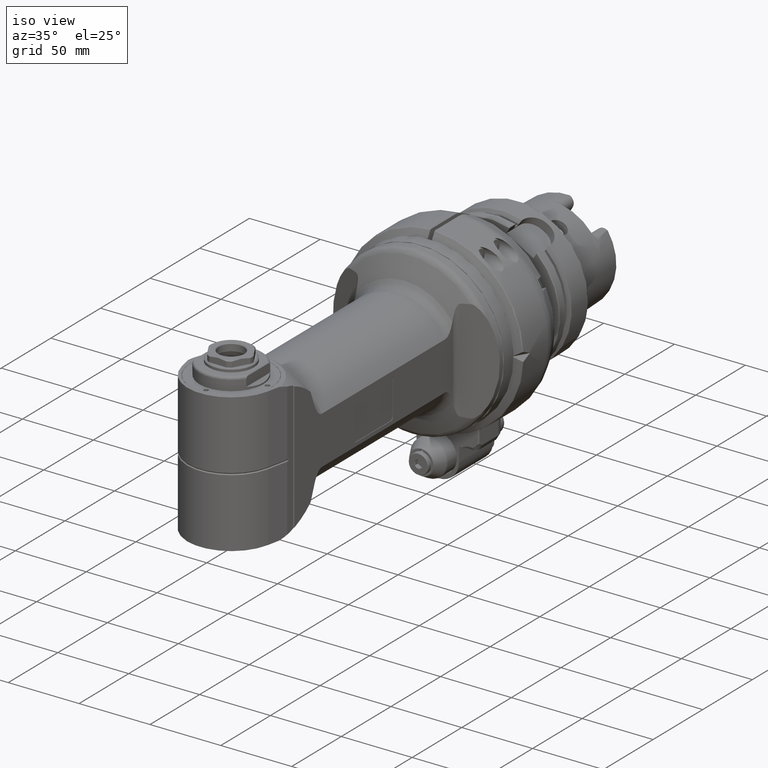
[diagram: clean part render]
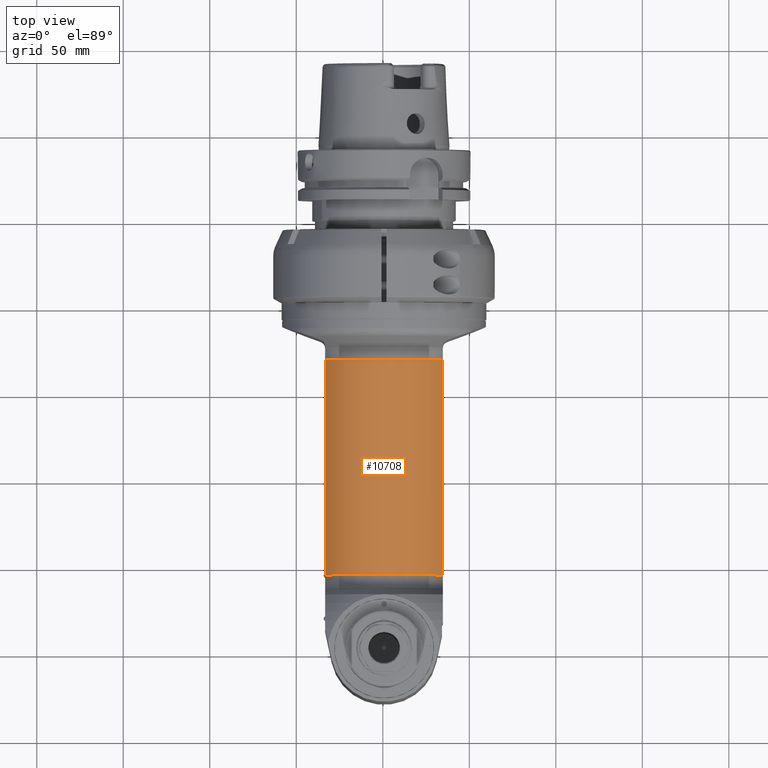
[diagram: tour spotlight — one face highlighted and labeled with its STEP entity id]
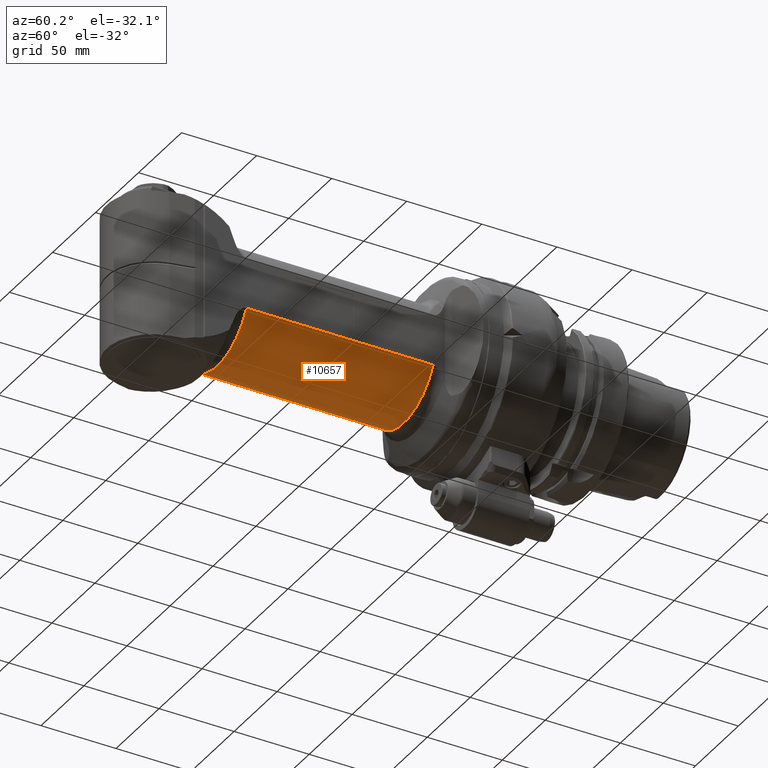
[diagram: tour spotlight — one face highlighted and labeled with its STEP entity id]
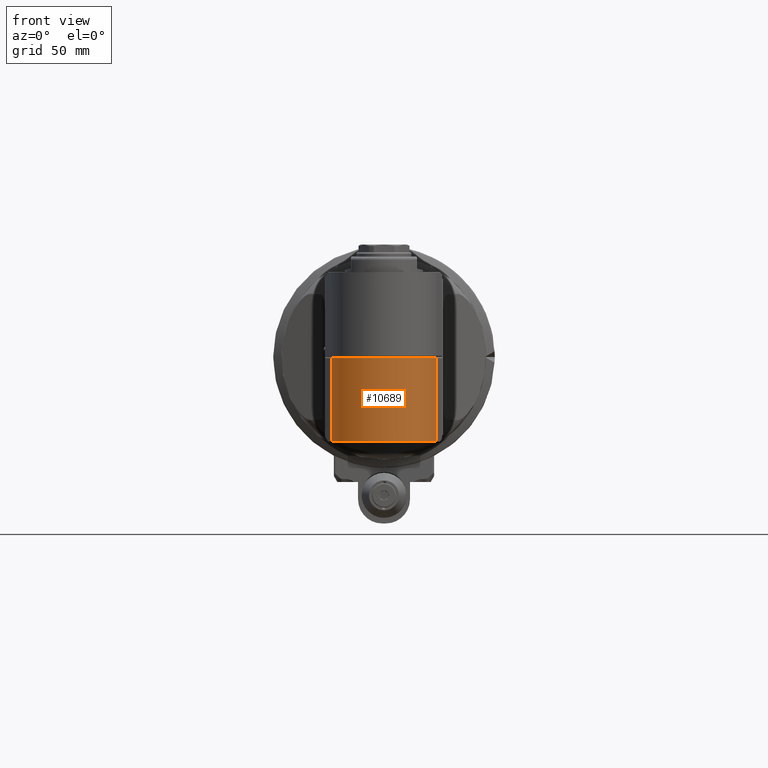
[diagram: tour spotlight — one face highlighted and labeled with its STEP entity id]
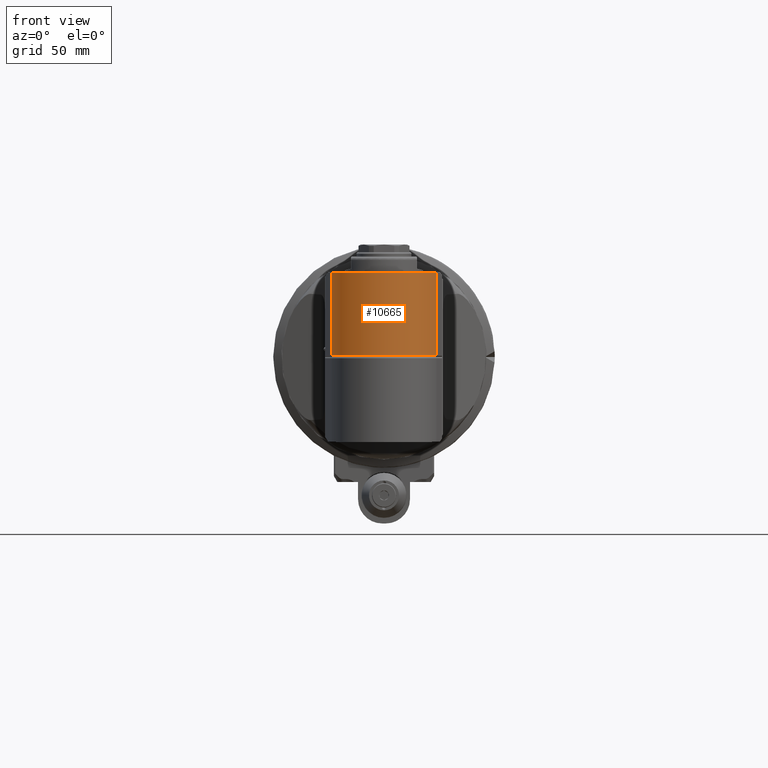
[diagram: tour spotlight — one face highlighted and labeled with its STEP entity id]
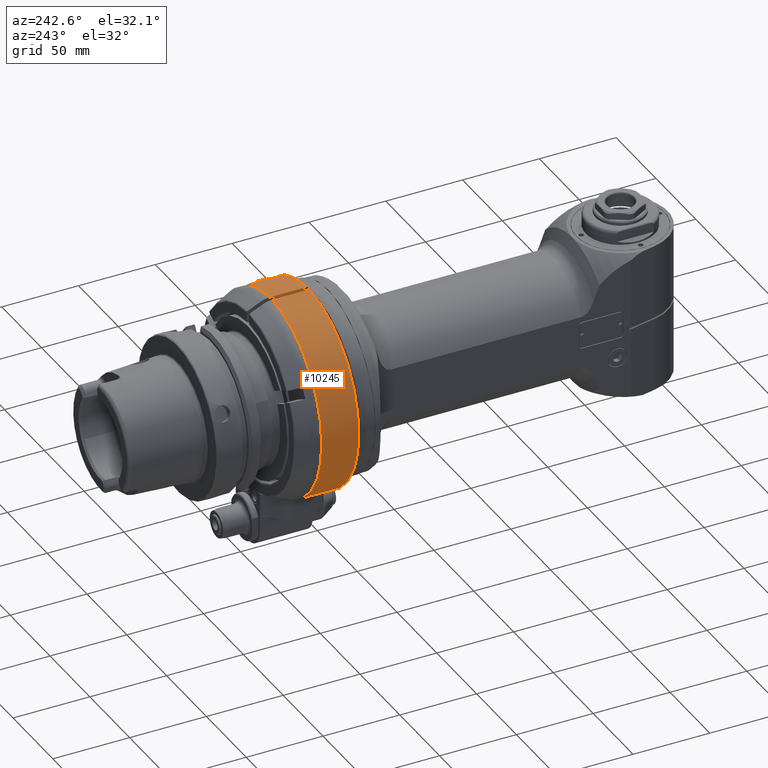
[diagram: tour spotlight — one face highlighted and labeled with its STEP entity id]
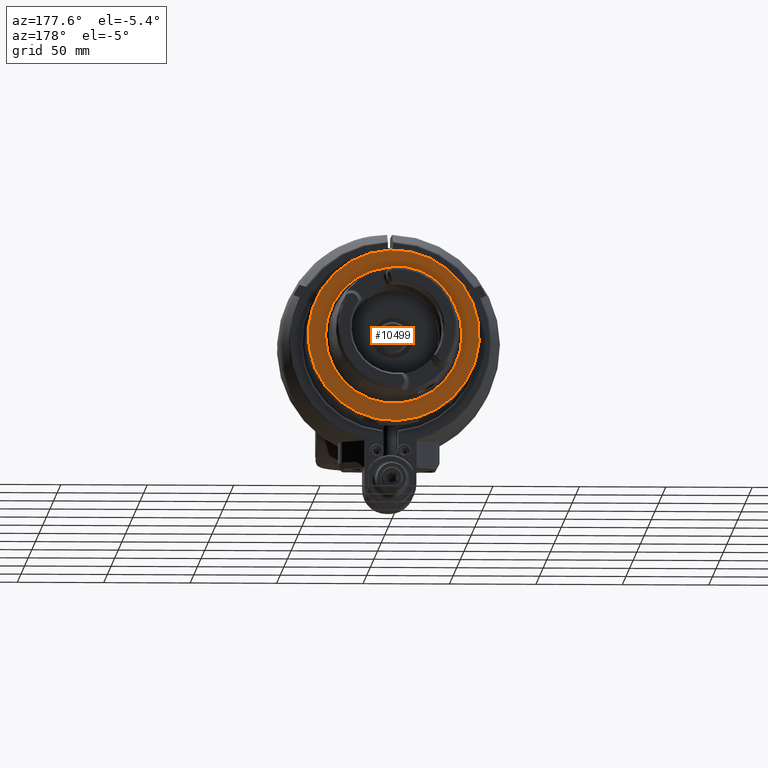
[diagram: tour spotlight — one face highlighted and labeled with its STEP entity id]
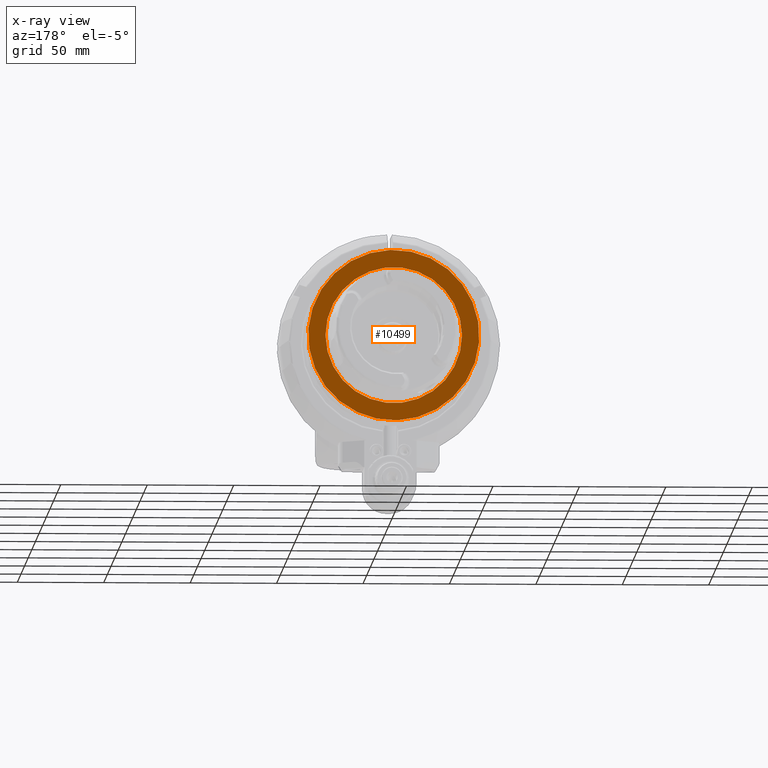
[diagram: x-ray of the same camera — body ghosted, this tour face saturated]
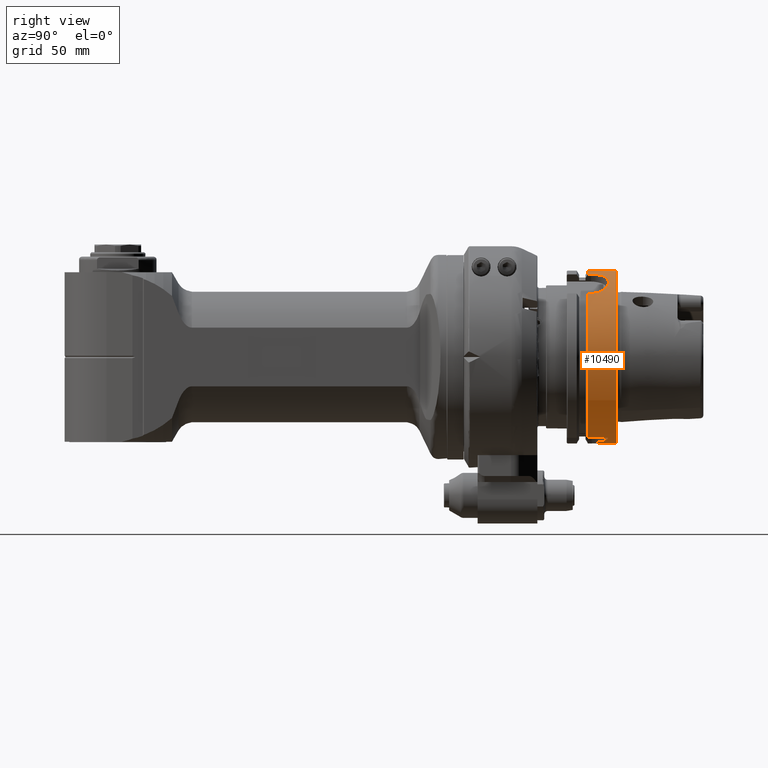
[diagram: tour spotlight — one face highlighted and labeled with its STEP entity id]
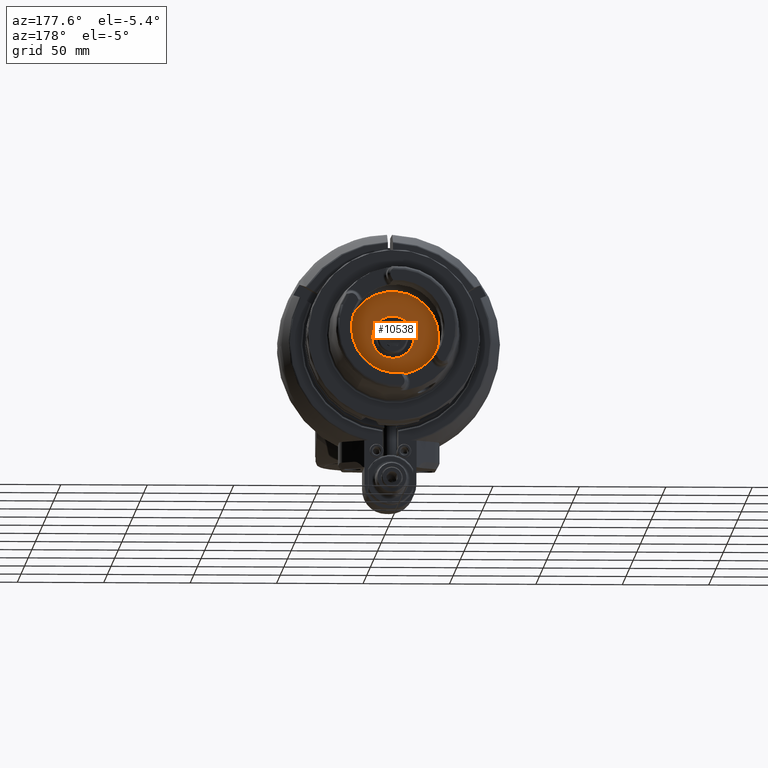
[diagram: tour spotlight — one face highlighted and labeled with its STEP entity id]
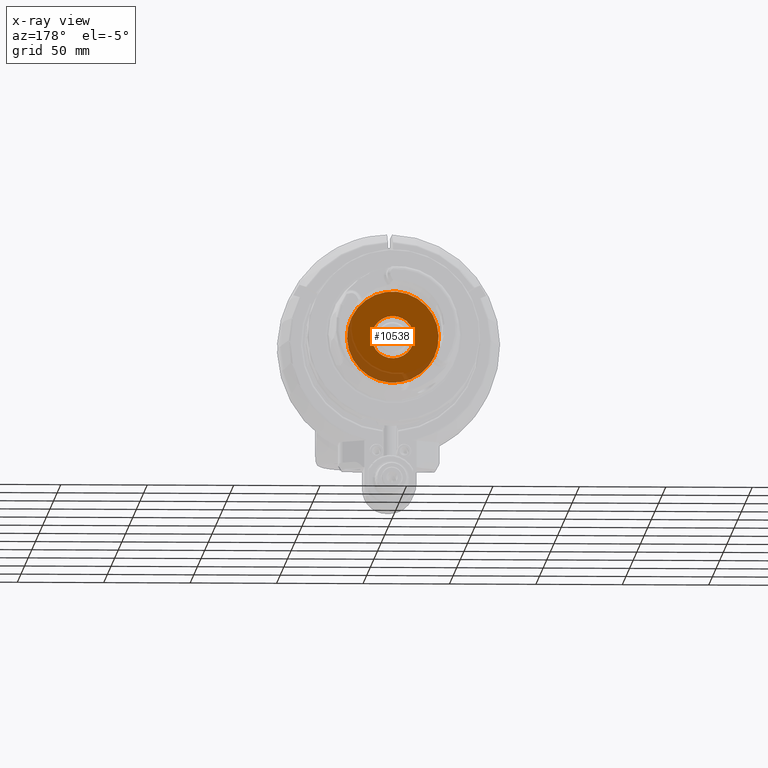
[diagram: x-ray of the same camera — body ghosted, this tour face saturated]
A machine part: a face-by-face anatomy tour. The part has 637 B-rep faces; the first image is the clean iso view, then the 8 largest visible faces are spotlighted one at a time (largest first), each with its STEP entity span.

Face 1 — top view, entity #10708. In plain terms, the highlighted cylindrical surface (partial cylindrical patch) has radius 38 mm, axis along (0, -1, 0).
Definition (entity closure, byte-faithful):
#497=CYLINDRICAL_SURFACE('',#11810,38.);
#1097=CIRCLE('',#11809,38.);
#1098=CIRCLE('',#11811,38.);
#1722=FACE_OUTER_BOUND('',#2412,.T.);
#2412=EDGE_LOOP('',(#9257,#9258,#9259,#9260));
#3283=LINE('',#32753,#3950);
#3287=LINE('',#32879,#3954);
#3950=VECTOR('',#14187,124.2601241953);
#3954=VECTOR('',#14199,124.2601241952);
#4853=VERTEX_POINT('',#32735);
#4854=VERTEX_POINT('',#32752);
#4878=VERTEX_POINT('',#32863);
#4879=VERTEX_POINT('',#32878);
#6277=EDGE_CURVE('',#4854,#4853,#3283,.T.);
#6303=EDGE_CURVE('',#4879,#4878,#3287,.T.);
#6439=EDGE_CURVE('',#4854,#4878,#1097,.T.);
#6440=EDGE_CURVE('',#4879,#4853,#1098,.T.);
#9257=ORIENTED_EDGE('',*,*,#6303,.T.);
#9258=ORIENTED_EDGE('',*,*,#6439,.F.);
#9259=ORIENTED_EDGE('',*,*,#6277,.T.);
#9260=ORIENTED_EDGE('',*,*,#6440,.F.);
#10708=ADVANCED_FACE('',(#1722),#497,.T.);
#11809=AXIS2_PLACEMENT_3D('',#33346,#14426,#14427);
#11810=AXIS2_PLACEMENT_3D('',#33347,#14428,#14429);
#11811=AXIS2_PLACEMENT_3D('',#33348,#14430,#14431);
#14187=DIRECTION('',(-1.,1.184808528101E-13,5.906888076875E-14));
#14199=DIRECTION('',(1.,0.,0.));
#14426=DIRECTION('center_axis',(1.,0.,0.));
#14427=DIRECTION('ref_axis',(0.,-0.44659375653888,0.894736842105259));
#14428=DIRECTION('center_axis',(1.,0.,0.));
#14429=DIRECTION('ref_axis',(0.,-1.,0.));
#14430=DIRECTION('center_axis',(-1.,0.,0.));
#14431=DIRECTION('ref_axis',(0.,-1.,0.));
#32735=CARTESIAN_POINT('',(110.9521198437,-16.97056274848,34.));
#32752=CARTESIAN_POINT('',(235.2122440389,-16.97056274848,34.));
#32753=CARTESIAN_POINT('',(235.2122440389,-16.97056274848,34.));
#32863=CARTESIAN_POINT('',(235.2122440389,-16.97056274848,-34.));
#32878=CARTESIAN_POINT('',(110.9521198437,-16.97056274848,-34.));
#32879=CARTESIAN_POINT('',(110.9521198437,-16.97056274848,-34.));
#33346=CARTESIAN_POINT('Origin',(235.2122440389,0.,0.));
#33347=CARTESIAN_POINT('Origin',(218.1559899284,0.,0.));
#33348=CARTESIAN_POINT('Origin',(110.9521198437,0.,0.));

Face 2 — auxiliary view, entity #10657. In plain terms, the highlighted cylindrical surface (partial cylindrical patch) has radius 38 mm, axis along (-0, 1, -0).
Definition (entity closure, byte-faithful):
#491=CYLINDRICAL_SURFACE('',#11709,38.);
#1052=CIRCLE('',#11710,38.);
#1053=CIRCLE('',#11711,38.);
#1671=FACE_OUTER_BOUND('',#2357,.T.);
#2357=EDGE_LOOP('',(#8977,#8978,#8979,#8980));
#3281=LINE('',#32707,#3948);
#3285=LINE('',#32828,#3952);
#3948=VECTOR('',#14185,124.2601241952);
#3952=VECTOR('',#14191,124.2601241953);
#4847=VERTEX_POINT('',#32705);
#4848=VERTEX_POINT('',#32706);
#4867=VERTEX_POINT('',#32826);
#4868=VERTEX_POINT('',#32827);
#6271=EDGE_CURVE('',#4847,#4848,#3281,.T.);
#6291=EDGE_CURVE('',#4867,#4868,#3285,.T.);
#6292=EDGE_CURVE('',#4847,#4868,#1052,.T.);
#6293=EDGE_CURVE('',#4867,#4848,#1053,.T.);
#8977=ORIENTED_EDGE('',*,*,#6291,.T.);
#8978=ORIENTED_EDGE('',*,*,#6292,.F.);
#8979=ORIENTED_EDGE('',*,*,#6271,.T.);
#8980=ORIENTED_EDGE('',*,*,#6293,.F.);
#10657=ADVANCED_FACE('',(#1671),#491,.T.);
#11709=AXIS2_PLACEMENT_3D('',#32825,#14189,#14190);
#11710=AXIS2_PLACEMENT_3D('',#32829,#14192,#14193);
#11711=AXIS2_PLACEMENT_3D('',#32830,#14194,#14195);
#14185=DIRECTION('',(1.,0.,0.));
#14189=DIRECTION('center_axis',(-1.,0.,0.));
#14190=DIRECTION('ref_axis',(0.,1.,0.));
#14191=DIRECTION('',(-1.,-1.188525350221E-13,-5.93547901626E-14));
#14192=DIRECTION('center_axis',(-1.,0.,0.));
#14193=DIRECTION('ref_axis',(0.,1.,0.));
#14194=DIRECTION('center_axis',(1.,0.,0.));
#14195=DIRECTION('ref_axis',(0.,1.,0.));
#32705=CARTESIAN_POINT('',(110.9521198437,16.97056274848,34.));
#32706=CARTESIAN_POINT('',(235.2122440389,16.97056274848,34.));
#32707=CARTESIAN_POINT('',(110.9521198437,16.97056274848,34.));
#32825=CARTESIAN_POINT('Origin',(102.088375936,0.,0.));
#32826=CARTESIAN_POINT('',(235.2122440389,16.97056274848,-34.));
#32827=CARTESIAN_POINT('',(110.9521198437,16.97056274848,-34.));
#32828=CARTESIAN_POINT('',(235.2122440389,16.97056274848,-34.));
#32829=CARTESIAN_POINT('Origin',(110.9521198437,0.,0.));
#32830=CARTESIAN_POINT('Origin',(235.2122440389,0.,0.));

Face 3 — front view, entity #10689. In plain terms, the highlighted cylindrical surface (partial cylindrical patch) has radius 31 mm, axis along (-0, -0, -1).
Definition (entity closure, byte-faithful):
#495=CYLINDRICAL_SURFACE('',#11774,31.);
#1075=CIRCLE('',#11759,31.);
#1078=CIRCLE('',#11766,31.);
#1703=FACE_OUTER_BOUND('',#2393,.T.);
#2393=EDGE_LOOP('',(#9182,#9183,#9184,#9185));
#3311=LINE('',#33229,#3978);
#3313=LINE('',#33287,#3980);
#3978=VECTOR('',#14313,48.33431457505);
#3980=VECTOR('',#14323,48.33431457505);
#4946=VERTEX_POINT('',#33225);
#4947=VERTEX_POINT('',#33227);
#4948=VERTEX_POINT('',#33231);
#4961=VERTEX_POINT('',#33286);
#6394=EDGE_CURVE('',#4946,#4947,#3311,.T.);
#6405=EDGE_CURVE('',#4946,#4948,#1075,.T.);
#6410=EDGE_CURVE('',#4961,#4948,#3313,.T.);
#6415=EDGE_CURVE('',#4961,#4947,#1078,.T.);
#9182=ORIENTED_EDGE('',*,*,#6415,.F.);
#9183=ORIENTED_EDGE('',*,*,#6410,.T.);
#9184=ORIENTED_EDGE('',*,*,#6405,.F.);
#9185=ORIENTED_EDGE('',*,*,#6394,.T.);
#10689=ADVANCED_FACE('',(#1703),#495,.T.);
#11759=AXIS2_PLACEMENT_3D('',#33269,#14317,#14318);
#11766=AXIS2_PLACEMENT_3D('',#33296,#14335,#14336);
#11774=AXIS2_PLACEMENT_3D('',#33309,#14355,#14356);
#14313=DIRECTION('',(1.411256231369E-13,-1.,-3.895655222007E-14));
#14317=DIRECTION('center_axis',(0.,1.,0.));
#14318=DIRECTION('ref_axis',(0.207911690817089,0.,0.978147600733948));
#14323=DIRECTION('',(-1.387735294179E-13,1.,-3.807451707547E-14));
#14335=DIRECTION('center_axis',(0.,-1.,0.));
#14336=DIRECTION('ref_axis',(0.207911690817799,0.,-0.978147600733797));
#14355=DIRECTION('center_axis',(0.,1.,0.));
#14356=DIRECTION('ref_axis',(1.,0.,0.));
#33225=CARTESIAN_POINT('',(284.5083594153,49.,30.32257562275));
#33227=CARTESIAN_POINT('',(284.5083594154,0.6656854249496,30.32257562275));
#33229=CARTESIAN_POINT('',(284.5083594153,49.,30.32257562275));
#33231=CARTESIAN_POINT('',(284.5083594153,49.,-30.32257562275));
#33269=CARTESIAN_POINT('Origin',(278.063097,49.,0.));
#33286=CARTESIAN_POINT('',(284.5083594154,0.6656854249495,-30.32257562275));
#33287=CARTESIAN_POINT('',(284.5083594154,0.6656854249495,-30.32257562275));
#33296=CARTESIAN_POINT('Origin',(278.063097,0.6656854249493,0.));
#33309=CARTESIAN_POINT('Origin',(278.063097,49.,0.));

Face 4 — front view, entity #10665. In plain terms, the highlighted cylindrical surface (partial cylindrical patch) has radius 31 mm, axis along (-0, -0, -1).
Definition (entity closure, byte-faithful):
#493=CYLINDRICAL_SURFACE('',#11730,31.);
#1063=CIRCLE('',#11728,31.);
#1065=CIRCLE('',#11731,31.);
#1679=FACE_OUTER_BOUND('',#2368,.T.);
#2368=EDGE_LOOP('',(#9055,#9056,#9057,#9058));
#3300=LINE('',#33047,#3967);
#3302=LINE('',#33105,#3969);
#3967=VECTOR('',#14240,48.33431457505);
#3969=VECTOR('',#14252,48.33431457505);
#4907=VERTEX_POINT('',#33031);
#4909=VERTEX_POINT('',#33036);
#4911=VERTEX_POINT('',#33049);
#4925=VERTEX_POINT('',#33103);
#6341=EDGE_CURVE('',#4909,#4907,#3300,.T.);
#6342=EDGE_CURVE('',#4909,#4911,#1063,.T.);
#6357=EDGE_CURVE('',#4925,#4907,#1065,.T.);
#6358=EDGE_CURVE('',#4925,#4911,#3302,.T.);
#9055=ORIENTED_EDGE('',*,*,#6341,.T.);
#9056=ORIENTED_EDGE('',*,*,#6357,.F.);
#9057=ORIENTED_EDGE('',*,*,#6358,.T.);
#9058=ORIENTED_EDGE('',*,*,#6342,.F.);
#10665=ADVANCED_FACE('',(#1679),#493,.T.);
#11728=AXIS2_PLACEMENT_3D('',#33050,#14243,#14244);
#11730=AXIS2_PLACEMENT_3D('',#33102,#14248,#14249);
#11731=AXIS2_PLACEMENT_3D('',#33104,#14250,#14251);
#14240=DIRECTION('',(1.352453888395E-13,1.,3.770700243188E-14));
#14243=DIRECTION('center_axis',(0.,-1.,0.));
#14244=DIRECTION('ref_axis',(0.207911690817109,0.,-0.978147600733944));
#14248=DIRECTION('center_axis',(0.,1.,0.));
#14249=DIRECTION('ref_axis',(1.,0.,0.));
#14250=DIRECTION('center_axis',(0.,1.,0.));
#14251=DIRECTION('ref_axis',(1.,0.,0.));
#14252=DIRECTION('',(-1.458298105748E-13,-1.,4.042661079441E-14));
#33031=CARTESIAN_POINT('',(284.5083594154,-0.6656854249492,-30.32257562275));
#33036=CARTESIAN_POINT('',(284.5083594153,-49.,-30.32257562275));
#33047=CARTESIAN_POINT('',(284.5083594153,-49.,-30.32257562275));
#33049=CARTESIAN_POINT('',(284.5083594153,-49.,30.32257562275));
#33050=CARTESIAN_POINT('Origin',(278.063097,-49.,0.));
#33102=CARTESIAN_POINT('Origin',(278.063097,49.,0.));
#33103=CARTESIAN_POINT('',(284.5083594154,-0.6656854249494,30.32257562275));
#33104=CARTESIAN_POINT('Origin',(278.063097,-0.6656854249492,0.));
#33105=CARTESIAN_POINT('',(284.5083594154,-0.6656854249494,30.32257562275));

Face 5 — auxiliary view, entity #10245. In plain terms, the highlighted cylindrical surface (partial cylindrical patch) has radius 64 mm, axis along (0, -1, 0).
Definition (entity closure, byte-faithful):
#194=ELLIPSE('',#10947,181.019335983739,64.);
#195=ELLIPSE('',#10948,181.019335983739,64.);
#211=B_SPLINE_CURVE_WITH_KNOTS('',3,(#15277,#15278,#15279,#15280,#15281,
#15282,#15283,#15284,#15285,#15286,#15287,#15288,#15289,#15290,#15291,#15292,
#15293,#15294,#15295,#15296,#15297,#15298,#15299,#15300,#15301,#15302,#15303,
#15304,#15305,#15306,#15307),.UNSPECIFIED.,.F.,.F.,(4,2,2,2,2,2,2,2,2,3,
2,2,2,2,4),(2.33576591656641,2.53697025208635,2.73817458760629,3.07997710502095,
3.42177962243561,3.82914079742247,4.23650197240934,4.45401690277108,4.56277436795195,
4.67153183313282,4.78028929831369,4.88904676349456,5.1065616938563,5.51392286884317,
5.92128404383004),.UNSPECIFIED.);
#212=B_SPLINE_CURVE_WITH_KNOTS('',3,(#15308,#15309,#15310,#15311,#15312,
#15313,#15314,#15315,#15316,#15317),.UNSPECIFIED.,.F.,.F.,(4,2,2,2,4),(1.24975221070201,
1.59155472811516,1.9333572455283,2.13456158104736,2.33576591656641),
 .UNSPECIFIED.);
#213=B_SPLINE_CURVE_WITH_KNOTS('',3,(#15345,#15346,#15347,#15348,#15349,
#15350),.UNSPECIFIED.,.F.,.F.,(4,2,4),(-0.273385795737172,-0.201204335519941,
0.),.UNSPECIFIED.);
#214=B_SPLINE_CURVE_WITH_KNOTS('',3,(#15351,#15352,#15353,#15354,#15355,
#15356,#15357,#15358,#15359,#15360,#15361,#15362,#15363,#15364,#15365,#15366,
#15367,#15368,#15369,#15370,#15371,#15372,#15373,#15374,#15375,#15376),
 .UNSPECIFIED.,.F.,.F.,(4,2,2,2,2,2,2,2,2,2,2,2,4),(0.,0.201204335519941,
0.402408671039883,0.74421118845454,1.0860137058692,1.49337488085606,1.90073605584293,
2.11825098620467,2.22700845138554,2.33576591656641,2.44452338174728,2.55328084692815,
2.64273772667916),.UNSPECIFIED.);
#392=CYLINDRICAL_SURFACE('',#10944,64.);
#602=FACE_BOUND('',#1899,.T.);
#699=CIRCLE('',#10945,64.);
#700=CIRCLE('',#10946,64.);
#701=CIRCLE('',#10949,64.);
#702=CIRCLE('',#10950,64.);
#703=CIRCLE('',#10951,64.);
#704=CIRCLE('',#10952,64.);
#1259=FACE_OUTER_BOUND('',#1898,.T.);
#1898=EDGE_LOOP('',(#6805,#6806,#6807,#6808,#6809,#6810,#6811,#6812,#6813,
#6814,#6815,#6816,#6817,#6818));
#1899=EDGE_LOOP('',(#6819,#6820));
#2806=LINE('',#15323,#3473);
#2807=LINE('',#15333,#3474);
#2808=LINE('',#15337,#3475);
#2809=LINE('',#15341,#3476);
#3473=VECTOR('',#12184,24.13740257269);
#3474=VECTOR('',#12193,24.13740277612);
#3475=VECTOR('',#12196,19.6014866602);
#3476=VECTOR('',#12199,19.6014866602);
#4142=VERTEX_POINT('',#15274);
#4143=VERTEX_POINT('',#15276);
#4144=VERTEX_POINT('',#15319);
#4145=VERTEX_POINT('',#15320);
#4146=VERTEX_POINT('',#15322);
#4147=VERTEX_POINT('',#15324);
#4148=VERTEX_POINT('',#15326);
#4149=VERTEX_POINT('',#15328);
#4150=VERTEX_POINT('',#15330);
#4151=VERTEX_POINT('',#15332);
#4152=VERTEX_POINT('',#15334);
#4153=VERTEX_POINT('',#15336);
#4154=VERTEX_POINT('',#15338);
#4155=VERTEX_POINT('',#15340);
#4156=VERTEX_POINT('',#15342);
#4157=VERTEX_POINT('',#15344);
#5198=EDGE_CURVE('',#4143,#4142,#211,.T.);
#5199=EDGE_CURVE('',#4142,#4143,#212,.T.);
#5200=EDGE_CURVE('',#4144,#4145,#699,.T.);
#5201=EDGE_CURVE('',#4144,#4146,#2806,.T.);
#5202=EDGE_CURVE('',#4147,#4146,#700,.T.);
#5203=EDGE_CURVE('',#4148,#4147,#194,.T.);
#5204=EDGE_CURVE('',#4149,#4148,#195,.T.);
#5205=EDGE_CURVE('',#4150,#4149,#701,.T.);
#5206=EDGE_CURVE('',#4150,#4151,#2807,.T.);
#5207=EDGE_CURVE('',#4152,#4151,#702,.T.);
#5208=EDGE_CURVE('',#4152,#4153,#2808,.T.);
#5209=EDGE_CURVE('',#4154,#4153,#703,.T.);
#5210=EDGE_CURVE('',#4154,#4155,#2809,.T.);
#5211=EDGE_CURVE('',#4156,#4155,#704,.T.);
#5212=EDGE_CURVE('',#4156,#4157,#213,.T.);
#5213=EDGE_CURVE('',#4157,#4145,#214,.T.);
#6805=ORIENTED_EDGE('',*,*,#5200,.F.);
#6806=ORIENTED_EDGE('',*,*,#5201,.T.);
#6807=ORIENTED_EDGE('',*,*,#5202,.F.);
#6808=ORIENTED_EDGE('',*,*,#5203,.F.);
#6809=ORIENTED_EDGE('',*,*,#5204,.F.);
#6810=ORIENTED_EDGE('',*,*,#5205,.F.);
#6811=ORIENTED_EDGE('',*,*,#5206,.T.);
#6812=ORIENTED_EDGE('',*,*,#5207,.F.);
#6813=ORIENTED_EDGE('',*,*,#5208,.T.);
#6814=ORIENTED_EDGE('',*,*,#5209,.F.);
#6815=ORIENTED_EDGE('',*,*,#5210,.T.);
#6816=ORIENTED_EDGE('',*,*,#5211,.F.);
#6817=ORIENTED_EDGE('',*,*,#5212,.T.);
#6818=ORIENTED_EDGE('',*,*,#5213,.T.);
#6819=ORIENTED_EDGE('',*,*,#5198,.T.);
#6820=ORIENTED_EDGE('',*,*,#5199,.T.);
#10245=ADVANCED_FACE('',(#1259,#602),#392,.T.);
#10944=AXIS2_PLACEMENT_3D('',#15318,#12180,#12181);
#10945=AXIS2_PLACEMENT_3D('',#15321,#12182,#12183);
#10946=AXIS2_PLACEMENT_3D('',#15325,#12185,#12186);
#10947=AXIS2_PLACEMENT_3D('',#15327,#12187,#12188);
#10948=AXIS2_PLACEMENT_3D('',#15329,#12189,#12190);
#10949=AXIS2_PLACEMENT_3D('',#15331,#12191,#12192);
#10950=AXIS2_PLACEMENT_3D('',#15335,#12194,#12195);
#10951=AXIS2_PLACEMENT_3D('',#15339,#12197,#12198);
#10952=AXIS2_PLACEMENT_3D('',#15343,#12200,#12201);
#12180=DIRECTION('center_axis',(0.,-1.,0.));
#12181=DIRECTION('ref_axis',(1.60450656165627E-11,0.,-1.));
#12182=DIRECTION('center_axis',(0.,1.,0.));
#12183=DIRECTION('ref_axis',(0.0234374975961501,0.,0.999725304124303));
#12184=DIRECTION('',(-1.034538208508E-9,-1.,2.425378056554E-11));
#12185=DIRECTION('center_axis',(0.,-1.,0.));
#12186=DIRECTION('ref_axis',(0.998921689185954,0.,0.0464269197113178));
#12187=DIRECTION('center_axis',(0.612372435695813,-0.353553390593307,-0.707106781186515));
#12188=DIRECTION('ref_axis',(-0.23145502494317,-0.935414346693473,0.267261241912441));
#12189=DIRECTION('center_axis',(0.612372435695813,-0.353553390593307,0.707106781186515));
#12190=DIRECTION('ref_axis',(0.23145502494317,0.935414346693473,0.267261241912441));
#12191=DIRECTION('center_axis',(0.,-1.,0.));
#12192=DIRECTION('ref_axis',(0.,0.,-1.));
#12193=DIRECTION('',(-8.999391902731E-10,1.,-2.10977951291E-11));
#12194=DIRECTION('center_axis',(0.,1.,0.));
#12195=DIRECTION('ref_axis',(-0.462309267047995,0.,-0.88671874999999));
#12196=DIRECTION('',(0.,-1.,0.));
#12197=DIRECTION('center_axis',(0.,1.,0.));
#12198=DIRECTION('ref_axis',(0.,0.,-1.));
#12199=DIRECTION('',(0.,1.,0.));
#12200=DIRECTION('center_axis',(0.,1.,0.));
#12201=DIRECTION('ref_axis',(0.676128638662391,0.,0.73678359372379));
#15274=CARTESIAN_POINT('',(37.30951562026,15.49999961539,52.00000042485));
#15276=CARTESIAN_POINT('',(43.97442393583,9.99999961538,46.50000042486));
#15277=CARTESIAN_POINT('Ctrl Pts',(43.9744239358291,9.99999961538,46.50000042486));
#15278=CARTESIAN_POINT('Ctrl Pts',(43.9744239358291,9.32931849698019,46.50000042486));
#15279=CARTESIAN_POINT('Ctrl Pts',(43.8371576677145,8.63941226663282,46.6307093597918));
#15280=CARTESIAN_POINT('Ctrl Pts',(43.330973996245,7.41453385082752,47.1014453269266));
#15281=CARTESIAN_POINT('Ctrl Pts',(42.9627879316632,6.87837812280302,47.4391753028209));
#15282=CARTESIAN_POINT('Ctrl Pts',(41.9031361817933,5.75485139666226,48.3831077989478));
#15283=CARTESIAN_POINT('Ctrl Pts',(41.0581670328874,5.25331152365568,49.1081702488795));
#15284=CARTESIAN_POINT('Ctrl Pts',(39.2246598953968,4.62499828821081,50.5846965992716));
#15285=CARTESIAN_POINT('Ctrl Pts',(38.235230779103,4.49999961537999,51.3358084268127));
#15286=CARTESIAN_POINT('Ctrl Pts',(36.2062457622713,4.49999961537999,52.7915862645079));
#15287=CARTESIAN_POINT('Ctrl Pts',(34.9821186225339,4.67632414366851,53.6122599705483));
#15288=CARTESIAN_POINT('Ctrl Pts',(32.5657995649948,5.39051204234231,55.1134442052857));
#15289=CARTESIAN_POINT('Ctrl Pts',(31.3720538264285,5.91986354060993,55.7954903504457));
#15290=CARTESIAN_POINT('Ctrl Pts',(29.8072946608512,7.00595527425918,56.6383964479));
#15291=CARTESIAN_POINT('Ctrl Pts',(29.2452605488542,7.48590536429318,56.9292743638302));
#15292=CARTESIAN_POINT('Ctrl Pts',(28.6063863858598,8.33744028863467,57.2514763474828));
#15293=CARTESIAN_POINT('Ctrl Pts',(28.4274607860322,8.64293843668211,57.3402067213012));
#15294=CARTESIAN_POINT('Ctrl Pts',(28.1755551468921,9.29298454853775,57.4644037607939));
#15295=CARTESIAN_POINT('Ctrl Pts',(28.1024901234944,9.63747473144376,57.50000042486));
#15296=CARTESIAN_POINT('Ctrl Pts',(28.1024901234944,9.99999961538,57.50000042486));
#15297=CARTESIAN_POINT('Ctrl Pts',(28.1024901234944,10.3625244993162,57.50000042486));
#15298=CARTESIAN_POINT('Ctrl Pts',(28.1755551468921,10.7070146822222,57.4644037607939));
#15299=CARTESIAN_POINT('Ctrl Pts',(28.4274607860322,11.3570607940779,57.3402067213012));
#15300=CARTESIAN_POINT('Ctrl Pts',(28.6063863858598,11.6625589421253,57.2514763474828));
#15301=CARTESIAN_POINT('Ctrl Pts',(29.2452605488542,12.5140938664668,56.9292743638302));
#15302=CARTESIAN_POINT('Ctrl Pts',(29.8072946608512,12.9940439565008,56.6383964479));
#15303=CARTESIAN_POINT('Ctrl Pts',(31.3720538264285,14.0801356901501,55.7954903504457));
#15304=CARTESIAN_POINT('Ctrl Pts',(32.5657995649948,14.6094871884177,55.1134442052857));
#15305=CARTESIAN_POINT('Ctrl Pts',(34.9821186225339,15.3236750870915,53.6122599705483));
#15306=CARTESIAN_POINT('Ctrl Pts',(36.2062457622713,15.49999961538,52.7915862645079));
#15307=CARTESIAN_POINT('Ctrl Pts',(37.3095156202082,15.49999961538,52.00000042486));
#15308=CARTESIAN_POINT('Ctrl Pts',(37.3095156202082,15.49999961538,52.00000042486));
#15309=CARTESIAN_POINT('Ctrl Pts',(38.2352307791025,15.4999996153766,51.335808426812));
#15310=CARTESIAN_POINT('Ctrl Pts',(39.2246598953968,15.3750009425492,50.5846965992716));
#15311=CARTESIAN_POINT('Ctrl Pts',(41.0581670328874,14.7466877071043,49.1081702488795));
#15312=CARTESIAN_POINT('Ctrl Pts',(41.9031361817933,14.2451478340977,48.3831077989478));
#15313=CARTESIAN_POINT('Ctrl Pts',(42.9627879316632,13.121621107957,47.4391753028209));
#15314=CARTESIAN_POINT('Ctrl Pts',(43.330973996245,12.5854653799325,47.1014453269266));
#15315=CARTESIAN_POINT('Ctrl Pts',(43.8371576677145,11.3605869641272,46.6307093597918));
#15316=CARTESIAN_POINT('Ctrl Pts',(43.9744239358291,10.6706807337798,46.50000042486));
#15317=CARTESIAN_POINT('Ctrl Pts',(43.9744239358291,9.99999961538,46.50000042486));
#15318=CARTESIAN_POINT('Origin',(0.,38.92307669231,0.));
#15319=CARTESIAN_POINT('',(1.49999983907449,27.6014864331705,63.9824194641222));
#15320=CARTESIAN_POINT('',(29.40321820789,27.60148642943,56.84585085139));
#15321=CARTESIAN_POINT('Origin',(0.,27.60148642943,0.));
#15322=CARTESIAN_POINT('',(1.4999998268305,3.46410161514,63.9824194644093));
#15323=CARTESIAN_POINT('',(1.499999831995,27.60149472155,63.98241946429));
#15324=CARTESIAN_POINT('',(63.9309881079,3.46410161514,2.971322861524));
#15325=CARTESIAN_POINT('Origin',(0.,3.46410161514,0.));
#15326=CARTESIAN_POINT('',(64.,9.52627944163,-4.618527782441E-14));
#15327=CARTESIAN_POINT('Origin',(0.,-101.324972242774,0.));
#15328=CARTESIAN_POINT('',(63.9309881079,3.46410161514,-2.971322861525));
#15329=CARTESIAN_POINT('Origin',(0.,-101.324972242768,0.));
#15330=CARTESIAN_POINT('',(-1.49999982761552,3.46410160603627,63.9824194643885));
#15331=CARTESIAN_POINT('Origin',(0.,3.46410161514,0.));
#15332=CARTESIAN_POINT('',(-1.49999983847661,27.6014864334864,63.9824194641339));
#15333=CARTESIAN_POINT('',(-1.499999809077,3.46409264559,63.98241946482));
#15334=CARTESIAN_POINT('',(-29.58779309107,27.60148642943,-56.75));
#15335=CARTESIAN_POINT('Origin',(0.,27.60148642943,0.));
#15336=CARTESIAN_POINT('',(-29.58779309107,7.99999976923,-56.75));
#15337=CARTESIAN_POINT('',(-29.58779309107,27.60148642943,-56.75));
#15338=CARTESIAN_POINT('',(29.58779309107,7.99999976923,-56.75));
#15339=CARTESIAN_POINT('Origin',(0.,7.99999976923,0.));
#15340=CARTESIAN_POINT('',(29.58779309107,27.60148642943,-56.75));
#15341=CARTESIAN_POINT('',(29.58779309107,7.99999976923,-56.75));
#15342=CARTESIAN_POINT('',(43.27223287439,27.60148642943,47.15414999832));
#15343=CARTESIAN_POINT('Origin',(0.,27.60148642943,0.));
#15344=CARTESIAN_POINT('',(43.9744239358291,24.99999961538,46.50000042486));
#15345=CARTESIAN_POINT('Ctrl Pts',(43.2722328743894,27.6014864294267,47.1541499983259));
#15346=CARTESIAN_POINT('Ctrl Pts',(43.3882340278707,27.4031967691484,47.0476985210472));
#15347=CARTESIAN_POINT('Ctrl Pts',(43.4932698845406,27.1927369263059,46.9505149112594));
#15348=CARTESIAN_POINT('Ctrl Pts',(43.8371576677145,26.3605869641272,46.6307093597918));
#15349=CARTESIAN_POINT('Ctrl Pts',(43.9744239358291,25.6706807337798,46.50000042486));
#15350=CARTESIAN_POINT('Ctrl Pts',(43.9744239358291,24.99999961538,46.50000042486));
#15351=CARTESIAN_POINT('Ctrl Pts',(43.9744239358291,24.99999961538,46.50000042486));
#15352=CARTESIAN_POINT('Ctrl Pts',(43.9744239358291,24.3293184969802,46.50000042486));
#15353=CARTESIAN_POINT('Ctrl Pts',(43.8371576677145,23.6394122666328,46.6307093597918));
#15354=CARTESIAN_POINT('Ctrl Pts',(43.330973996245,22.4145338508275,47.1014453269266));
#15355=CARTESIAN_POINT('Ctrl Pts',(42.9627879316632,21.878378122803,47.4391753028209));
#15356=CARTESIAN_POINT('Ctrl Pts',(41.9031361817933,20.7548513966623,48.3831077989478));
#15357=CARTESIAN_POINT('Ctrl Pts',(41.0581670328874,20.2533115236557,49.1081702488795));
#15358=CARTESIAN_POINT('Ctrl Pts',(39.2246598953968,19.6249982882108,50.5846965992716));
#15359=CARTESIAN_POINT('Ctrl Pts',(38.235230779103,19.49999961538,51.3358084268127));
#15360=CARTESIAN_POINT('Ctrl Pts',(36.2062457622713,19.49999961538,52.7915862645079));
#15361=CARTESIAN_POINT('Ctrl Pts',(34.9821186225339,19.6763241436685,53.6122599705483));
#15362=CARTESIAN_POINT('Ctrl Pts',(32.5657995649948,20.3905120423423,55.1134442052857));
#15363=CARTESIAN_POINT('Ctrl Pts',(31.3720538264285,20.9198635406099,55.7954903504457));
#15364=CARTESIAN_POINT('Ctrl Pts',(29.8072946608512,22.0059552742592,56.6383964479));
#15365=CARTESIAN_POINT('Ctrl Pts',(29.2452605488542,22.4859053642932,56.9292743638302));
#15366=CARTESIAN_POINT('Ctrl Pts',(28.6063863858598,23.3374402886347,57.2514763474828));
#15367=CARTESIAN_POINT('Ctrl Pts',(28.4274607860322,23.6429384366821,57.3402067213012));
#15368=CARTESIAN_POINT('Ctrl Pts',(28.1755551468921,24.2929845485378,57.4644037607939));
#15369=CARTESIAN_POINT('Ctrl Pts',(28.1024901234944,24.6374747314438,57.50000042486));
#15370=CARTESIAN_POINT('Ctrl Pts',(28.1024901234944,25.3625244993162,57.50000042486));
#15371=CARTESIAN_POINT('Ctrl Pts',(28.1755551468921,25.7070146822222,57.4644037607939));
#15372=CARTESIAN_POINT('Ctrl Pts',(28.4274607860322,26.3570607940779,57.3402067213012));
#15373=CARTESIAN_POINT('Ctrl Pts',(28.6063863858598,26.6625589421253,57.2514763474828));
#15374=CARTESIAN_POINT('Ctrl Pts',(28.9945100072322,27.1798764949457,57.0557348259874));
#15375=CARTESIAN_POINT('Ctrl Pts',(29.1926854379836,27.3986414906453,56.9547478224287));
#15376=CARTESIAN_POINT('Ctrl Pts',(29.4032182078948,27.6014864294271,56.8458508513939));

Face 6 — auxiliary view, entity #10499. An x-ray twin of the same camera follows (body ghosted, this face saturated) — the face is partly hidden behind the body. In plain terms, the highlighted planar face has unit normal (-0, -1, 0).
Definition (entity closure, byte-faithful):
#636=FACE_BOUND('',#2187,.T.);
#921=CIRCLE('',#11418,49.5);
#922=CIRCLE('',#11420,39.48458996994);
#1513=FACE_OUTER_BOUND('',#2186,.T.);
#2186=EDGE_LOOP('',(#8136));
#2187=EDGE_LOOP('',(#8137));
#4603=VERTEX_POINT('',#31252);
#4604=VERTEX_POINT('',#31256);
#5883=EDGE_CURVE('',#4603,#4603,#921,.T.);
#5884=EDGE_CURVE('',#4604,#4604,#922,.T.);
#8136=ORIENTED_EDGE('',*,*,#5883,.T.);
#8137=ORIENTED_EDGE('',*,*,#5884,.T.);
#10092=PLANE('',#11419);
#10499=ADVANCED_FACE('',(#1513,#636),#10092,.F.);
#11418=AXIS2_PLACEMENT_3D('',#31254,#13449,#13450);
#11419=AXIS2_PLACEMENT_3D('',#31255,#13451,#13452);
#11420=AXIS2_PLACEMENT_3D('',#31257,#13453,#13454);
#13449=DIRECTION('center_axis',(1.54009162449779E-13,1.,-8.87417182908664E-14));
#13450=DIRECTION('ref_axis',(-0.866025403784429,1.77746706242506E-13,0.500000000000017));
#13451=DIRECTION('center_axis',(-1.54009162449779E-13,-1.,8.87417182908664E-14));
#13452=DIRECTION('ref_axis',(0.500000000000017,-1.51998809520375E-16,0.866025403784429));
#13453=DIRECTION('center_axis',(-1.54070515829829E-13,-1.,8.86354511194037E-14));
#13454=DIRECTION('ref_axis',(0.565286898981988,-1.60208928738564E-13,-0.824894370110093));
#31252=CARTESIAN_POINT('',(-24.7499999999918,88.49999976923,-42.8682574873344));
#31254=CARTESIAN_POINT('Origin',(9.02472469598529E-12,88.49999976923,-5.20849656909233E-12));
#31255=CARTESIAN_POINT('Origin',(21.9500000000103,88.4999997692244,38.0185152261322));
#31256=CARTESIAN_POINT('',(-22.3201214216742,88.4999997692289,32.5706159723046));
#31257=CARTESIAN_POINT('Origin',(9.02472469598529E-12,88.49999976923,-5.20849656909233E-12));

Face 7 — right view, entity #10490. In plain terms, the highlighted cylindrical surface (bore or boss wall) has radius 50 mm, axis along (-0, -1, 0).
Definition (entity closure, byte-faithful):
#282=B_SPLINE_CURVE_WITH_KNOTS('',3,(#31046,#31047,#31048,#31049,#31050,
#31051,#31052,#31053,#31054,#31055,#31056,#31057),.UNSPECIFIED.,.F.,.F.,
(4,2,2,2,2,4),(-2.43960407431131E-12,0.372938236851937,0.745876473706314,
0.949211985781746,1.15254749785718,1.4744467776868),.UNSPECIFIED.);
#283=B_SPLINE_CURVE_WITH_KNOTS('',3,(#31063,#31064,#31065,#31066,#31067,
#31068,#31069,#31070,#31071,#31072,#31073,#31074,#31075,#31076,#31077,#31078,
#31079,#31080),.UNSPECIFIED.,.F.,.F.,(4,2,2,2,2,2,2,2,4),(4.04676292476118E-14,
0.377795255890225,0.755590511780409,1.1333645980446,1.51113868430879,1.88891277057297,
2.26668685683716,2.64448211272735,3.02227736861753),.UNSPECIFIED.);
#284=B_SPLINE_CURVE_WITH_KNOTS('',3,(#31088,#31089,#31090,#31091,#31092,
#31093,#31094,#31095,#31096,#31097),.UNSPECIFIED.,.F.,.F.,(4,2,2,2,4),(1.50996806152533,
1.88841920047208,2.26687033941884,2.64473353329375,3.02259672716866),
 .UNSPECIFIED.);
#285=B_SPLINE_CURVE_WITH_KNOTS('',3,(#31101,#31102,#31103,#31104,#31105,
#31106,#31107,#31108,#31109,#31110),.UNSPECIFIED.,.F.,.F.,(4,2,2,2,4),(6.72795152923875E-14,
0.37808380192431,0.756167603848552,1.13439818677692,1.51262876970529),
 .UNSPECIFIED.);
#286=B_SPLINE_CURVE_WITH_KNOTS('',3,(#31120,#31121,#31122,#31123,#31124,
#31125,#31126,#31127,#31128,#31129,#31130,#31131,#31132,#31133,#31134,#31135,
#31136,#31137,#31138,#31139,#31140,#31141,#31142,#31143,#31144,#31145,#31146,
#31147,#31148,#31149,#31150,#31151,#31152,#31153),.UNSPECIFIED.,.T.,.F.,
(4,2,2,2,2,2,2,2,2,2,2,2,2,2,2,2,4),(-3.01565744395019,-2.82717853293504,
-2.63869962191989,-2.45022135244126,-2.26174308296264,-2.07326481348402,
-1.88478654400539,-1.69630763299024,-1.50782872197509,-1.31934981095994,
-1.1308708999448,-0.942392630466171,-0.753914360987547,-0.565436091508923,
-0.376957822030299,-0.188478911015149,0.),.UNSPECIFIED.);
#448=CYLINDRICAL_SURFACE('',#11399,50.);
#635=FACE_BOUND('',#2177,.T.);
#911=CIRCLE('',#11400,50.);
#912=CIRCLE('',#11401,50.);
#913=CIRCLE('',#11402,50.);
#914=CIRCLE('',#11403,50.);
#915=CIRCLE('',#11404,50.);
#916=CIRCLE('',#11405,50.);
#917=CIRCLE('',#11406,50.);
#1504=FACE_OUTER_BOUND('',#2176,.T.);
#2176=EDGE_LOOP('',(#8062,#8063,#8064,#8065,#8066,#8067,#8068,#8069,#8070,
#8071,#8072,#8073,#8074,#8075,#8076,#8077,#8078,#8079,#8080));
#2177=EDGE_LOOP('',(#8081));
#3089=LINE('',#31019,#3756);
#3097=LINE('',#31045,#3764);
#3098=LINE('',#31061,#3765);
#3099=LINE('',#31082,#3766);
#3100=LINE('',#31086,#3767);
#3101=LINE('',#31112,#3768);
#3102=LINE('',#31115,#3769);
#3756=VECTOR('',#13373,2.11549883567801);
#3764=VECTOR('',#13385,11.7523966951103);
#3765=VECTOR('',#13388,1.752404735808);
#3766=VECTOR('',#13389,1.752404735808);
#3767=VECTOR('',#13392,1.752404735808);
#3768=VECTOR('',#13395,1.752404735809);
#3769=VECTOR('',#13398,50.);
#4552=VERTEX_POINT('',#31017);
#4553=VERTEX_POINT('',#31018);
#4561=VERTEX_POINT('',#31041);
#4562=VERTEX_POINT('',#31042);
#4563=VERTEX_POINT('',#31044);
#4564=VERTEX_POINT('',#31058);
#4565=VERTEX_POINT('',#31060);
#4566=VERTEX_POINT('',#31062);
#4567=VERTEX_POINT('',#31081);
#4568=VERTEX_POINT('',#31083);
#4569=VERTEX_POINT('',#31085);
#4570=VERTEX_POINT('',#31087);
#4571=VERTEX_POINT('',#31098);
#4572=VERTEX_POINT('',#31100);
#4573=VERTEX_POINT('',#31111);
#4574=VERTEX_POINT('',#31114);
#4575=VERTEX_POINT('',#31116);
#4576=VERTEX_POINT('',#31119);
#5820=EDGE_CURVE('',#4552,#4553,#3089,.T.);
#5830=EDGE_CURVE('',#4561,#4562,#911,.T.);
#5831=EDGE_CURVE('',#4561,#4563,#3097,.T.);
#5832=EDGE_CURVE('',#4552,#4563,#282,.T.);
#5833=EDGE_CURVE('',#4564,#4553,#912,.T.);
#5834=EDGE_CURVE('',#4564,#4565,#3098,.T.);
#5835=EDGE_CURVE('',#4566,#4565,#283,.T.);
#5836=EDGE_CURVE('',#4566,#4567,#3099,.T.);
#5837=EDGE_CURVE('',#4568,#4567,#913,.T.);
#5838=EDGE_CURVE('',#4568,#4569,#3100,.T.);
#5839=EDGE_CURVE('',#4570,#4569,#284,.T.);
#5840=EDGE_CURVE('',#4570,#4571,#914,.T.);
#5841=EDGE_CURVE('',#4572,#4571,#285,.T.);
#5842=EDGE_CURVE('',#4572,#4573,#3101,.T.);
#5843=EDGE_CURVE('',#4562,#4573,#915,.T.);
#5844=EDGE_CURVE('',#4562,#4574,#3102,.T.);
#5845=EDGE_CURVE('',#4575,#4574,#916,.T.);
#5846=EDGE_CURVE('',#4574,#4575,#917,.T.);
#5847=EDGE_CURVE('',#4576,#4576,#286,.T.);
#8062=ORIENTED_EDGE('',*,*,#5830,.F.);
#8063=ORIENTED_EDGE('',*,*,#5831,.T.);
#8064=ORIENTED_EDGE('',*,*,#5832,.F.);
#8065=ORIENTED_EDGE('',*,*,#5820,.T.);
#8066=ORIENTED_EDGE('',*,*,#5833,.F.);
#8067=ORIENTED_EDGE('',*,*,#5834,.T.);
#8068=ORIENTED_EDGE('',*,*,#5835,.F.);
#8069=ORIENTED_EDGE('',*,*,#5836,.T.);
#8070=ORIENTED_EDGE('',*,*,#5837,.F.);
#8071=ORIENTED_EDGE('',*,*,#5838,.T.);
#8072=ORIENTED_EDGE('',*,*,#5839,.F.);
#8073=ORIENTED_EDGE('',*,*,#5840,.T.);
#8074=ORIENTED_EDGE('',*,*,#5841,.F.);
#8075=ORIENTED_EDGE('',*,*,#5842,.T.);
#8076=ORIENTED_EDGE('',*,*,#5843,.F.);
#8077=ORIENTED_EDGE('',*,*,#5844,.T.);
#8078=ORIENTED_EDGE('',*,*,#5845,.F.);
#8079=ORIENTED_EDGE('',*,*,#5846,.F.);
#8080=ORIENTED_EDGE('',*,*,#5844,.F.);
#8081=ORIENTED_EDGE('',*,*,#5847,.T.);
#10490=ADVANCED_FACE('',(#1504,#635),#448,.T.);
#11399=AXIS2_PLACEMENT_3D('',#31040,#13381,#13382);
#11400=AXIS2_PLACEMENT_3D('',#31043,#13383,#13384);
#11401=AXIS2_PLACEMENT_3D('',#31059,#13386,#13387);
#11402=AXIS2_PLACEMENT_3D('',#31084,#13390,#13391);
#11403=AXIS2_PLACEMENT_3D('',#31099,#13393,#13394);
#11404=AXIS2_PLACEMENT_3D('',#31113,#13396,#13397);
#11405=AXIS2_PLACEMENT_3D('',#31117,#13399,#13400);
#11406=AXIS2_PLACEMENT_3D('',#31118,#13401,#13402);
#13373=DIRECTION('',(1.32932442317644E-6,-0.999999999999094,2.11736615397175E-7));
#13381=DIRECTION('center_axis',(-1.54009162449779E-13,-1.,8.87417182908664E-14));
#13382=DIRECTION('ref_axis',(-0.866025403784429,1.77746706242506E-13,0.500000000000017));
#13383=DIRECTION('center_axis',(-1.54009162449779E-13,-1.,8.87417182908664E-14));
#13384=DIRECTION('ref_axis',(0.357551113299212,-1.37941467656134E-13,-0.933893570691272));
#13385=DIRECTION('',(2.2627919011833E-7,0.999999999999971,8.66332321584738E-8));
#13386=DIRECTION('center_axis',(-1.54009162449779E-13,-1.,8.87417182908664E-14));
#13387=DIRECTION('ref_axis',(-0.316692867799772,-3.5400413438566E-14,-0.948528137423849));
#13388=DIRECTION('',(1.57293927259129E-13,1.,-8.30523387501579E-14));
#13389=DIRECTION('',(-1.59321263528079E-13,-1.,7.95408893283094E-14));
#13390=DIRECTION('center_axis',(-1.54009162449779E-13,-1.,8.87417182908664E-14));
#13391=DIRECTION('ref_axis',(0.297224347097735,3.89560005541403E-14,0.954807670419716));
#13392=DIRECTION('',(1.47157245914328E-13,1.,-1.00609585859487E-13));
#13393=DIRECTION('center_axis',(1.54009162449779E-13,1.,-8.87417182908664E-14));
#13394=DIRECTION('ref_axis',(0.482579481922328,3.40296571813225E-15,0.875852181379699));
#13395=DIRECTION('',(-1.47157245914328E-13,-1.,1.00609585859487E-13));
#13396=DIRECTION('center_axis',(-1.54009162449779E-13,-1.,8.87417182908664E-14));
#13397=DIRECTION('ref_axis',(0.357551113299212,-1.37941467656134E-13,-0.933893570691272));
#13398=DIRECTION('',(1.54009162449779E-13,1.,-8.87417182908664E-14));
#13399=DIRECTION('center_axis',(1.54009162449779E-13,1.,-8.87417182908664E-14));
#13400=DIRECTION('ref_axis',(-0.500000000000017,1.51998809520307E-16,-0.866025403784429));
#13401=DIRECTION('center_axis',(1.54009162449779E-13,1.,-8.87417182908664E-14));
#13402=DIRECTION('ref_axis',(-0.500000000000017,1.51998809520307E-16,-0.866025403784429));
#31017=CARTESIAN_POINT('',(7.86492190383626,73.8631019099872,-49.3775556649684));
#31018=CARTESIAN_POINT('',(7.8649231876275,71.7475977785819,-49.3775555742589));
#31019=CARTESIAN_POINT('',(7.86492190383626,73.8631019099872,-49.3775556649684));
#31040=CARTESIAN_POINT('Origin',(4.9631405051187E-12,62.1276455128,-2.86816853700987E-12));
#31041=CARTESIAN_POINT('',(17.877553993885,71.7475948818525,-46.6946788932686));
#31042=CARTESIAN_POINT('',(43.3012701892279,71.7475950334098,-25.0000000000046));
#31043=CARTESIAN_POINT('Origin',(6.44470087360036E-12,71.747595033419,-3.72185938733755E-12));
#31044=CARTESIAN_POINT('',(17.8775556649691,83.4999997692203,-46.6946785345705));
#31045=CARTESIAN_POINT('',(17.8775530056416,71.7476030741093,-46.6946795527167));
#31046=CARTESIAN_POINT('Ctrl Pts',(7.86492190383628,73.8631019100116,-49.3775556649684));
#31047=CARTESIAN_POINT('Ctrl Pts',(7.86492190383261,75.1062293661908,-49.3775556649691));
#31048=CARTESIAN_POINT('Ctrl Pts',(8.17841945542063,76.403229625249,-49.3302896850085));
#31049=CARTESIAN_POINT('Ctrl Pts',(9.36642835701544,78.7213411566077,-49.1185717367571));
#31050=CARTESIAN_POINT('Ctrl Pts',(10.2394196605811,79.7428314390126,-48.9497654496589));
#31051=CARTESIAN_POINT('Ctrl Pts',(11.6881606363323,80.9596545513016,-48.6175066386126));
#31052=CARTESIAN_POINT('Ctrl Pts',(12.2855665958577,81.3766303186666,-48.4714823548127));
#31053=CARTESIAN_POINT('Ctrl Pts',(13.5373797780749,82.0947201880448,-48.1368787769837));
#31054=CARTESIAN_POINT('Ctrl Pts',(14.1911229553871,82.3968753168883,-47.9480504919924));
#31055=CARTESIAN_POINT('Ctrl Pts',(15.7584722036245,83.0074689904831,-47.4624255840411));
#31056=CARTESIAN_POINT('Ctrl Pts',(16.8088632310719,83.3002393282968,-47.1038388302447));
#31057=CARTESIAN_POINT('Ctrl Pts',(17.8775556649683,83.499999769221,-46.6946785345686));
#31058=CARTESIAN_POINT('',(-15.8346433899825,71.7475950334176,-47.4264068711974));
#31059=CARTESIAN_POINT('Origin',(6.44470087360036E-12,71.747595033419,-3.72185938733755E-12));
#31060=CARTESIAN_POINT('',(-15.8346433899819,73.4999997692256,-47.426406871197));
#31061=CARTESIAN_POINT('',(-15.8346433899825,71.7475950334176,-47.4264068711974));
#31062=CARTESIAN_POINT('',(-33.1551514656705,73.4999997692292,-37.4264068711967));
#31063=CARTESIAN_POINT('Ctrl Pts',(-33.1551514656702,73.4999997692288,-37.4264068711961));
#31064=CARTESIAN_POINT('Ctrl Pts',(-33.15515146567,74.7593172888628,-37.4264068711962));
#31065=CARTESIAN_POINT('Ctrl Pts',(-32.9633872730685,76.1001775408477,-37.5990056215662));
#31066=CARTESIAN_POINT('Ctrl Pts',(-32.1746921312661,78.5629198195291,-38.2760931362872));
#31067=CARTESIAN_POINT('Ctrl Pts',(-31.5764452587741,79.6851043710385,-38.7779454667881));
#31068=CARTESIAN_POINT('Ctrl Pts',(-30.1685175856605,81.4569811465081,-39.8830967545136));
#31069=CARTESIAN_POINT('Ctrl Pts',(-29.2638094736125,82.2260431846755,-40.5605076073765));
#31070=CARTESIAN_POINT('Ctrl Pts',(-27.2255907162354,83.2476451915858,-41.955840264975));
#31071=CARTESIAN_POINT('Ctrl Pts',(-26.0905398519801,83.4999997692272,-42.6716467121192));
#31072=CARTESIAN_POINT('Ctrl Pts',(-23.9094601480051,83.4999997692268,-43.9308936663332));
#31073=CARTESIAN_POINT('Ctrl Pts',(-22.722028148458,83.2476451915849,-44.5559733257937));
#31074=CARTESIAN_POINT('Ctrl Pts',(-20.4945252415594,82.2260431846737,-45.6234562193529));
#31075=CARTESIAN_POINT('Ctrl Pts',(-19.4555161781572,81.4569811465059,-46.0682510009648));
#31076=CARTESIAN_POINT('Ctrl Pts',(-17.7944632514055,79.6851043710357,-46.7349764887092));
#31077=CARTESIAN_POINT('Ctrl Pts',(-17.0607229479977,78.562919819526,-47.0021473127713));
#31078=CARTESIAN_POINT('Ctrl Pts',(-16.0800003887636,76.1001775408442,-47.3466335840527));
#31079=CARTESIAN_POINT('Ctrl Pts',(-15.8346433899814,74.7593172888592,-47.4264068711965));
#31080=CARTESIAN_POINT('Ctrl Pts',(-15.8346433899816,73.4999997692252,-47.4264068711964));
#31081=CARTESIAN_POINT('',(-33.1551514656711,71.7475950334212,-37.4264068711971));
#31082=CARTESIAN_POINT('',(-33.1551514656705,73.4999997692292,-37.4264068711967));
#31083=CARTESIAN_POINT('',(14.8612173548911,71.7475950334206,47.740383520979));
#31084=CARTESIAN_POINT('Origin',(6.44470087360036E-12,71.747595033419,-3.72185938733755E-12));
#31085=CARTESIAN_POINT('',(14.8612173548917,73.4999997692296,47.7403835209794));
#31086=CARTESIAN_POINT('',(14.8612173548911,71.7475950334206,47.740383520979));
#31087=CARTESIAN_POINT('',(24.1289740961243,83.4999997692274,43.7926090689797));
#31088=CARTESIAN_POINT('Ctrl Pts',(24.1289740961246,83.4999997692272,43.7926090689802));
#31089=CARTESIAN_POINT('Ctrl Pts',(23.0240832441508,83.4999997692274,44.401384917533));
#31090=CARTESIAN_POINT('Ctrl Pts',(21.8223102971262,83.2469265100256,45.0035353904289));
#31091=CARTESIAN_POINT('Ctrl Pts',(19.5692668727804,82.2240558745738,46.0279829940697));
#31092=CARTESIAN_POINT('Ctrl Pts',(18.518992471569,81.4544799872928,46.4526902478932));
#31093=CARTESIAN_POINT('Ctrl Pts',(16.8412448728577,79.6828615546799,47.0868929075248));
#31094=CARTESIAN_POINT('Ctrl Pts',(16.1002370175881,78.5616636413945,47.3397750478611));
#31095=CARTESIAN_POINT('Ctrl Pts',(15.1093817207566,76.1001784608205,47.6652758610589));
#31096=CARTESIAN_POINT('Ctrl Pts',(14.8612173548934,74.759543748812,47.7403835209819));
#31097=CARTESIAN_POINT('Ctrl Pts',(14.8612173548932,73.4999997692289,47.740383520982));
#31098=CARTESIAN_POINT('',(25.8610249036932,83.499999769227,42.7926090689796));
#31099=CARTESIAN_POINT('Origin',(8.25467888373615E-12,83.499999769227,-4.76478797763736E-12));
#31100=CARTESIAN_POINT('',(33.9137762381491,73.4999997692257,36.740383520979));
#31101=CARTESIAN_POINT('Ctrl Pts',(33.9137762381506,73.499999769225,36.7403835209816));
#31102=CARTESIAN_POINT('Ctrl Pts',(33.9137762381508,74.7602791089726,36.7403835209816));
#31103=CARTESIAN_POINT('Ctrl Pts',(33.7244311210663,76.1016425432696,36.917953140681));
#31104=CARTESIAN_POINT('Ctrl Pts',(32.9462715936584,78.5642372979071,37.6140359614859));
#31105=CARTESIAN_POINT('Ctrl Pts',(32.3561402095478,79.6858168387312,38.1298416712893));
#31106=CARTESIAN_POINT('Ctrl Pts',(30.9673687301461,81.4566619985626,39.2661092285243));
#31107=CARTESIAN_POINT('Ctrl Pts',(30.0746916818756,82.2254389372351,39.9630198317573));
#31108=CARTESIAN_POINT('Ctrl Pts',(28.0618284928312,83.247218490565,41.4012537898775));
#31109=CARTESIAN_POINT('Ctrl Pts',(26.9400564685727,83.4999997692266,42.1405137006838));
#31110=CARTESIAN_POINT('Ctrl Pts',(25.8610249036935,83.4999997692268,42.7926090689802));
#31111=CARTESIAN_POINT('',(33.9137762381486,71.7475950334167,36.7403835209786));
#31112=CARTESIAN_POINT('',(33.9137762381491,73.4999997692257,36.740383520979));
#31113=CARTESIAN_POINT('Origin',(6.44470087360036E-12,71.747595033419,-3.72185938733755E-12));
#31114=CARTESIAN_POINT('',(43.3012701892304,87.9999997692211,-25.000000000006));
#31115=CARTESIAN_POINT('',(43.3012701892264,62.1276455127911,-25.0000000000037));
#31116=CARTESIAN_POINT('',(-24.9999999999914,87.9999997692278,-43.3012701892258));
#31117=CARTESIAN_POINT('Origin',(8.94772011476048E-12,87.99999976923,-5.16412570994676E-12));
#31118=CARTESIAN_POINT('Origin',(8.94772011476048E-12,87.99999976923,-5.16412570994676E-12));
#31119=CARTESIAN_POINT('',(-45.5842198490262,81.4999997692346,20.5445589087388));
#31120=CARTESIAN_POINT('Ctrl Pts',(-45.5842198490269,81.4999997692348,20.5445589087396));
#31121=CARTESIAN_POINT('Ctrl Pts',(-45.5842198490268,82.128262805952,20.5445589087395));
#31122=CARTESIAN_POINT('Ctrl Pts',(-45.5327663580172,82.798114060426,20.6599340561521));
#31123=CARTESIAN_POINT('Ctrl Pts',(-45.3185774907563,84.0298855215176,21.1256294899833));
#31124=CARTESIAN_POINT('Ctrl Pts',(-45.1552556544078,84.59184167386,21.4755847099767));
#31125=CARTESIAN_POINT('Ctrl Pts',(-44.7660416297583,85.4792241662552,22.27553292979));
#31126=CARTESIAN_POINT('Ctrl Pts',(-44.5140434096769,85.8639563735556,22.7789335258143));
#31127=CARTESIAN_POINT('Ctrl Pts',(-43.9390216035824,86.3743557630138,23.869274261368));
#31128=CARTESIAN_POINT('Ctrl Pts',(-43.6154006383438,86.4999997692349,24.4559101018964));
#31129=CARTESIAN_POINT('Ctrl Pts',(-42.9871397400817,86.4999997692349,25.5440898980952));
#31130=CARTESIAN_POINT('Ctrl Pts',(-42.6409086820329,86.3743557630138,26.1176717954533));
#31131=CARTESIAN_POINT('Ctrl Pts',(-41.9841568093096,85.8639563735556,27.1608256550379));
#31132=CARTESIAN_POINT('Ctrl Pts',(-41.6741982149131,85.4792241662552,27.6307628133491));
#31133=CARTESIAN_POINT('Ctrl Pts',(-41.1760297471673,84.59184167386,28.3678061561113));
#31134=CARTESIAN_POINT('Ctrl Pts',(-40.9546205546403,84.0298855215175,28.6842246253786));
#31135=CARTESIAN_POINT('Ctrl Pts',(-40.6584109121465,82.798114060426,29.1025653425499));
#31136=CARTESIAN_POINT('Ctrl Pts',(-40.5842198490266,82.128262805952,29.2048129465838));
#31137=CARTESIAN_POINT('Ctrl Pts',(-40.5842198490268,80.8717367325177,29.2048129465839));
#31138=CARTESIAN_POINT('Ctrl Pts',(-40.6584109121469,80.2018854780437,29.1025653425501));
#31139=CARTESIAN_POINT('Ctrl Pts',(-40.9546205546411,78.9701140169522,28.684224625379));
#31140=CARTESIAN_POINT('Ctrl Pts',(-41.1760297471683,78.4081578646097,28.3678061561118));
#31141=CARTESIAN_POINT('Ctrl Pts',(-41.6741982149143,77.5207753722146,27.6307628133498));
#31142=CARTESIAN_POINT('Ctrl Pts',(-41.984156809311,77.1360431649142,27.1608256550387));
#31143=CARTESIAN_POINT('Ctrl Pts',(-42.6409086820344,76.625643775456,26.1176717954542));
#31144=CARTESIAN_POINT('Ctrl Pts',(-42.9871397400832,76.4999997692349,25.5440898980961));
#31145=CARTESIAN_POINT('Ctrl Pts',(-43.6154006383453,76.4999997692349,24.4559101018973));
#31146=CARTESIAN_POINT('Ctrl Pts',(-43.9390216035839,76.625643775456,23.8692742613688));
#31147=CARTESIAN_POINT('Ctrl Pts',(-44.5140434096782,77.1360431649142,22.7789335258151));
#31148=CARTESIAN_POINT('Ctrl Pts',(-44.7660416297596,77.5207753722146,22.2755329297907));
#31149=CARTESIAN_POINT('Ctrl Pts',(-45.1552556544087,78.4081578646097,21.4755847099773));
#31150=CARTESIAN_POINT('Ctrl Pts',(-45.3185774907571,78.9701140169522,21.1256294899838));
#31151=CARTESIAN_POINT('Ctrl Pts',(-45.5327663580176,80.2018854780437,20.6599340561524));
#31152=CARTESIAN_POINT('Ctrl Pts',(-45.584219849027,80.8717367325177,20.5445589087397));
#31153=CARTESIAN_POINT('Ctrl Pts',(-45.5842198490269,81.4999997692348,20.5445589087396));

Face 8 — auxiliary view, entity #10538. An x-ray twin of the same camera follows (body ghosted, this face saturated) — the face is partly hidden behind the body. In plain terms, the highlighted planar face has unit normal (-0, -1, 0).
Definition (entity closure, byte-faithful):
#639=FACE_BOUND('',#2229,.T.);
#980=CIRCLE('',#11516,26.5);
#981=CIRCLE('',#11518,12.25);
#1552=FACE_OUTER_BOUND('',#2228,.T.);
#2228=EDGE_LOOP('',(#8376));
#2229=EDGE_LOOP('',(#8377));
#4697=VERTEX_POINT('',#31973);
#4698=VERTEX_POINT('',#31977);
#6022=EDGE_CURVE('',#4697,#4697,#980,.T.);
#6024=EDGE_CURVE('',#4698,#4698,#981,.T.);
#8376=ORIENTED_EDGE('',*,*,#6022,.T.);
#8377=ORIENTED_EDGE('',*,*,#6024,.T.);
#10103=PLANE('',#11517);
#10538=ADVANCED_FACE('',(#1552,#639),#10103,.F.);
#11516=AXIS2_PLACEMENT_3D('',#31974,#13681,#13682);
#11517=AXIS2_PLACEMENT_3D('',#31976,#13684,#13685);
#11518=AXIS2_PLACEMENT_3D('',#31978,#13686,#13687);
#13681=DIRECTION('center_axis',(1.54009162449779E-13,1.,-8.87417182908664E-14));
#13682=DIRECTION('ref_axis',(-0.866025403784429,1.77746706242506E-13,0.500000000000017));
#13684=DIRECTION('center_axis',(-1.54009162449779E-13,-1.,8.87417182908664E-14));
#13685=DIRECTION('ref_axis',(-0.866025403784429,1.77746706242506E-13,0.500000000000017));
#13686=DIRECTION('center_axis',(-1.54009162449779E-13,-1.,8.87417182908664E-14));
#13687=DIRECTION('ref_axis',(-0.500000000000017,1.51998809520371E-16,-0.866025403784429));
#31973=CARTESIAN_POINT('',(22.9496732002945,75.9999997692223,-13.2500000000045));
#31974=CARTESIAN_POINT('Origin',(7.09961016535894E-12,75.999999769227,-4.09922509046257E-12));
#31976=CARTESIAN_POINT('Origin',(11.4748366001508,75.9999997692246,-6.62500000000432));
#31977=CARTESIAN_POINT('',(6.12500000000731,75.999999769227,10.6088111963552));
#31978=CARTESIAN_POINT('Origin',(7.09962008985394E-12,75.999999769227,-4.09920790073298E-12));